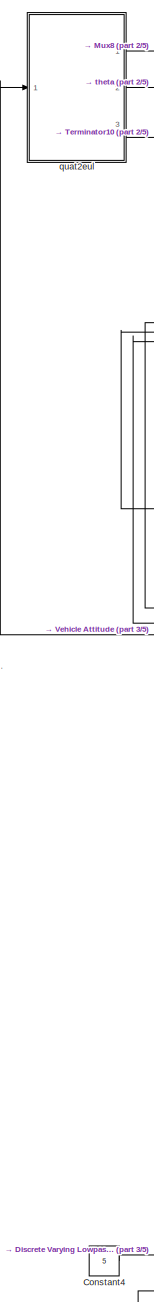
[diagram: root canvas - part 1/5, left side, full height]
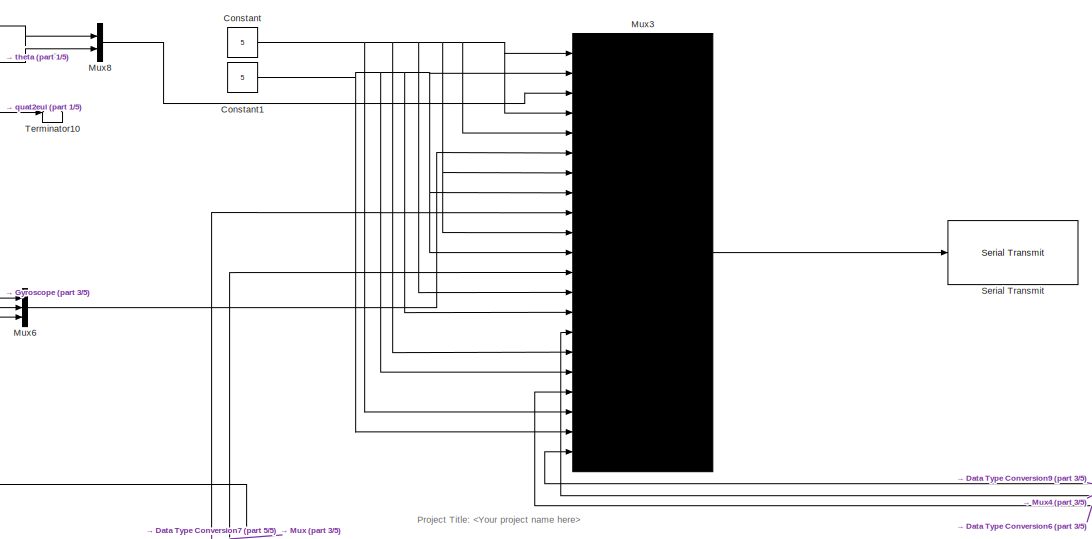
[diagram: root canvas - part 2/5, top center region]
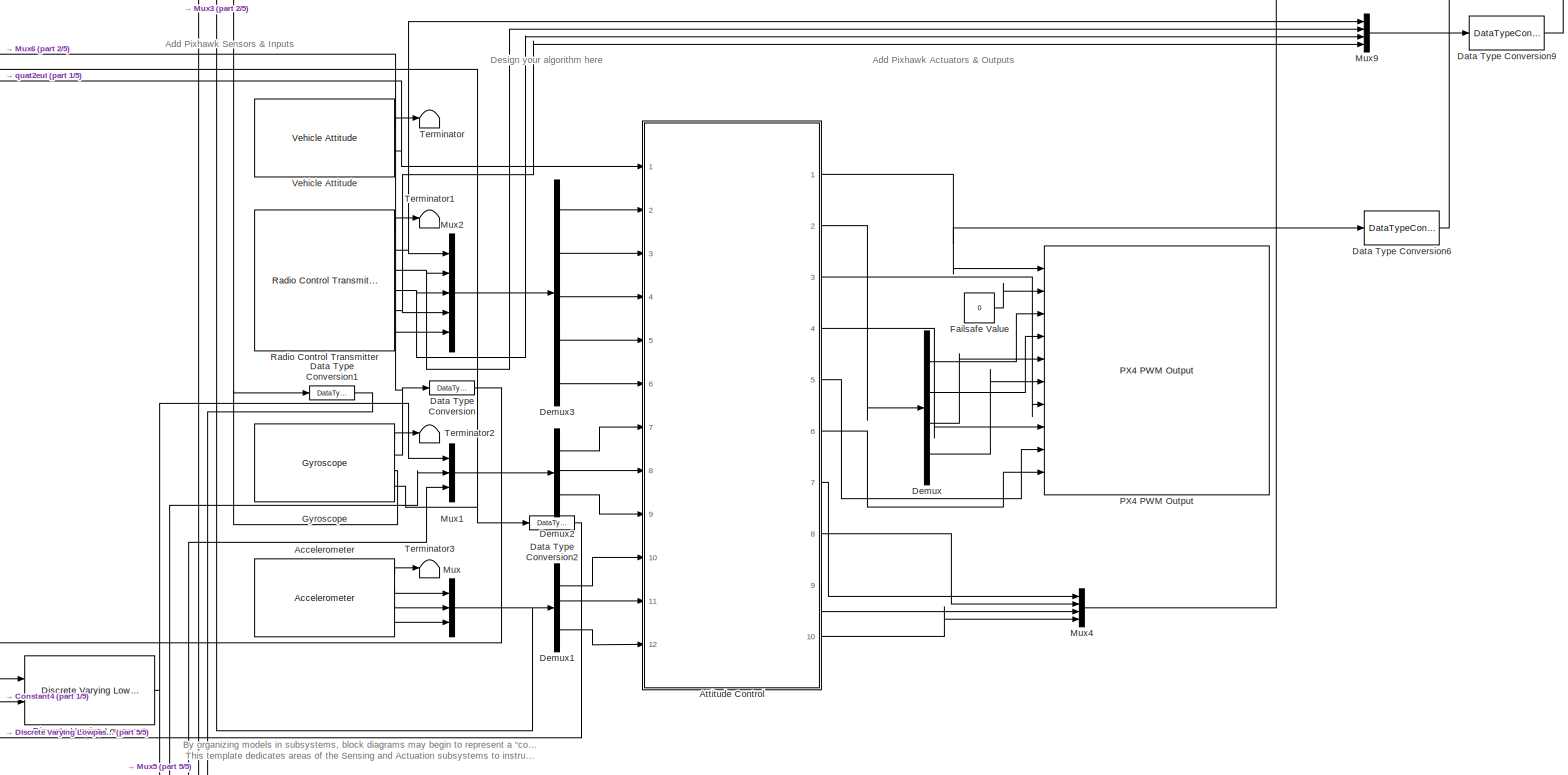
[diagram: root canvas - part 3/5, full width, middle band]
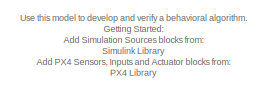
[diagram: root canvas - part 4/5, middle left region]
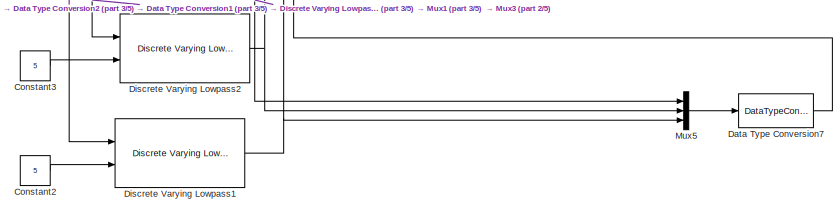
[diagram: root canvas - part 5/5, bottom center region]
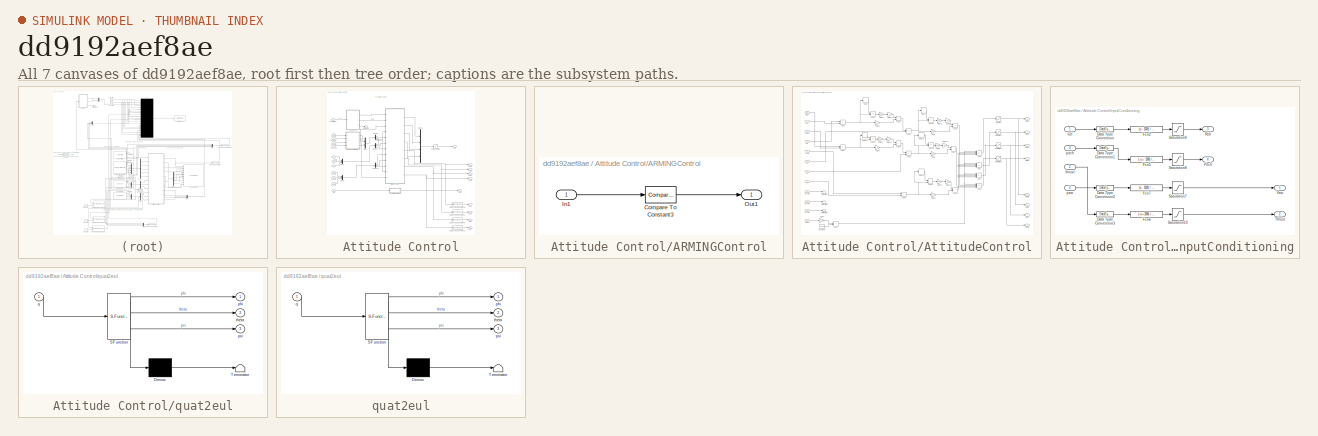
[diagram: thumbnail index - all 7 canvases of the model, root first then tree order]
MODEL slx_dd9192aef8ae
KIND model
CONFIG AbsTol = auto
CONFIG EnableMultiTasking = on
CONFIG FixedStep = auto
CONFIG MaxStep = auto
CONFIG MinStep = auto
CONFIG RelTol = 1e-3
CONFIG SampleTimeConstraint = Unconstrained
CONFIG SolverName = FixedStepAuto
CONFIG StartTime = 0.0
CONFIG StopTime = 5.0
BLOCK [Reference] Accelerometer  REF=px4Sensorslib/Accelerometer
  Ports = [0, 4]
  SourceBlock = px4Sensorslib/Accelerometer
  SourceProductBaseCode = PX4AUTOPILOTS
  SourceType = PX4 Accelerometer
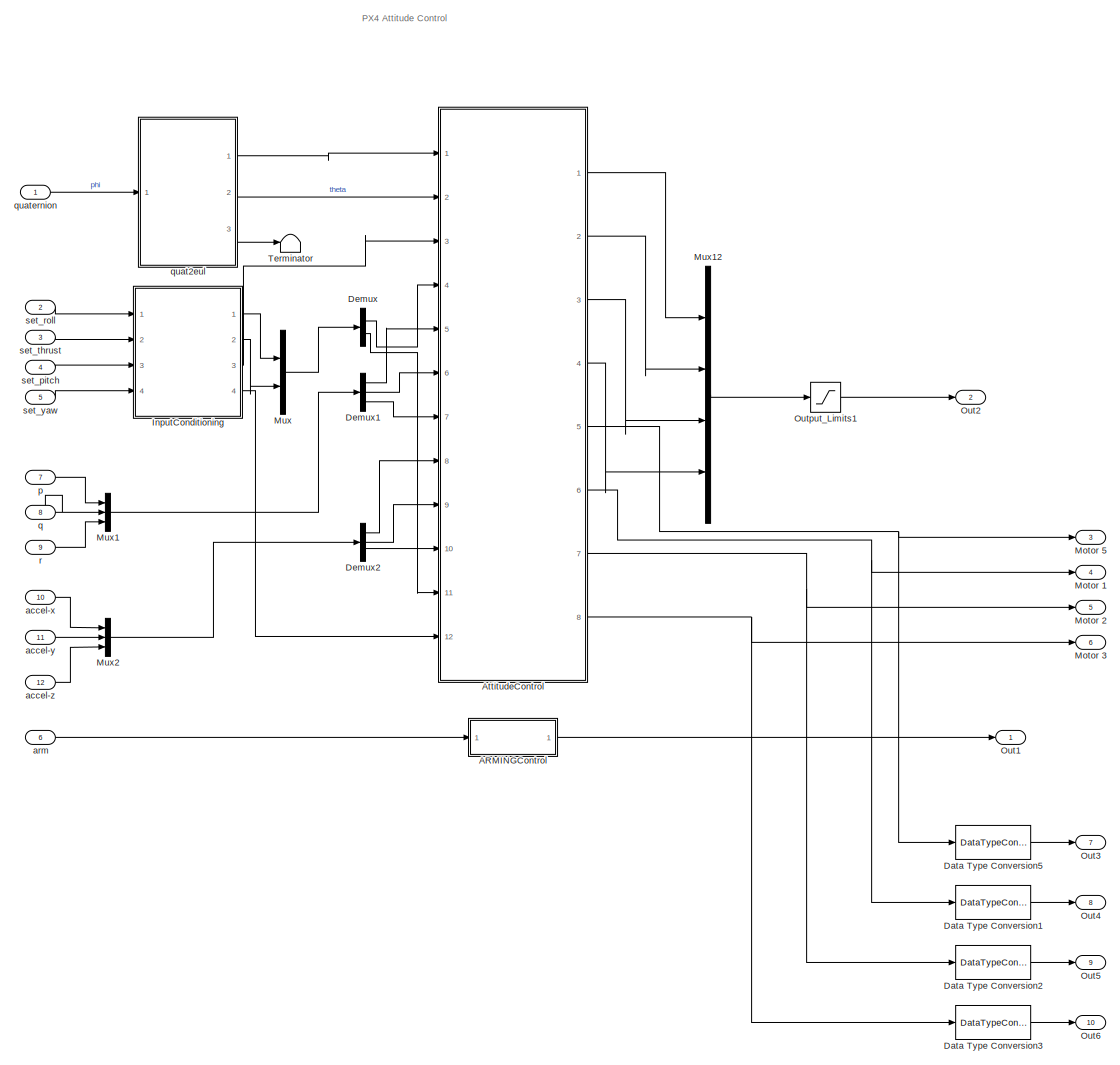
[diagram: Attitude Control - part 1/1, most of the canvas]
BLOCK [SubSystem] Attitude Control
  Ports = [12, 10]
  RequestExecContextInheritance = off
BLOCK [SubSystem] Attitude Control/ARMINGControl
  Ports = [1, 1]
  RequestExecContextInheritance = off
BLOCK [Reference] Attitude Control/ARMINGControl/Compare To Constant3  REF=simulink/Logic and Bit
Operations/Compare
To Constant
  Ports = [1, 1]
  SourceBlock = simulink/Logic and Bit\nOperations/Compare\nTo Constant
  SourceProductBaseCode = SL
  SourceType = Compare To Constant
BLOCK [Inport] Attitude Control/ARMINGControl/In1
BLOCK [Outport] Attitude Control/ARMINGControl/Out1
  VectorParamsAs1DForOutWhenUnconnected = off
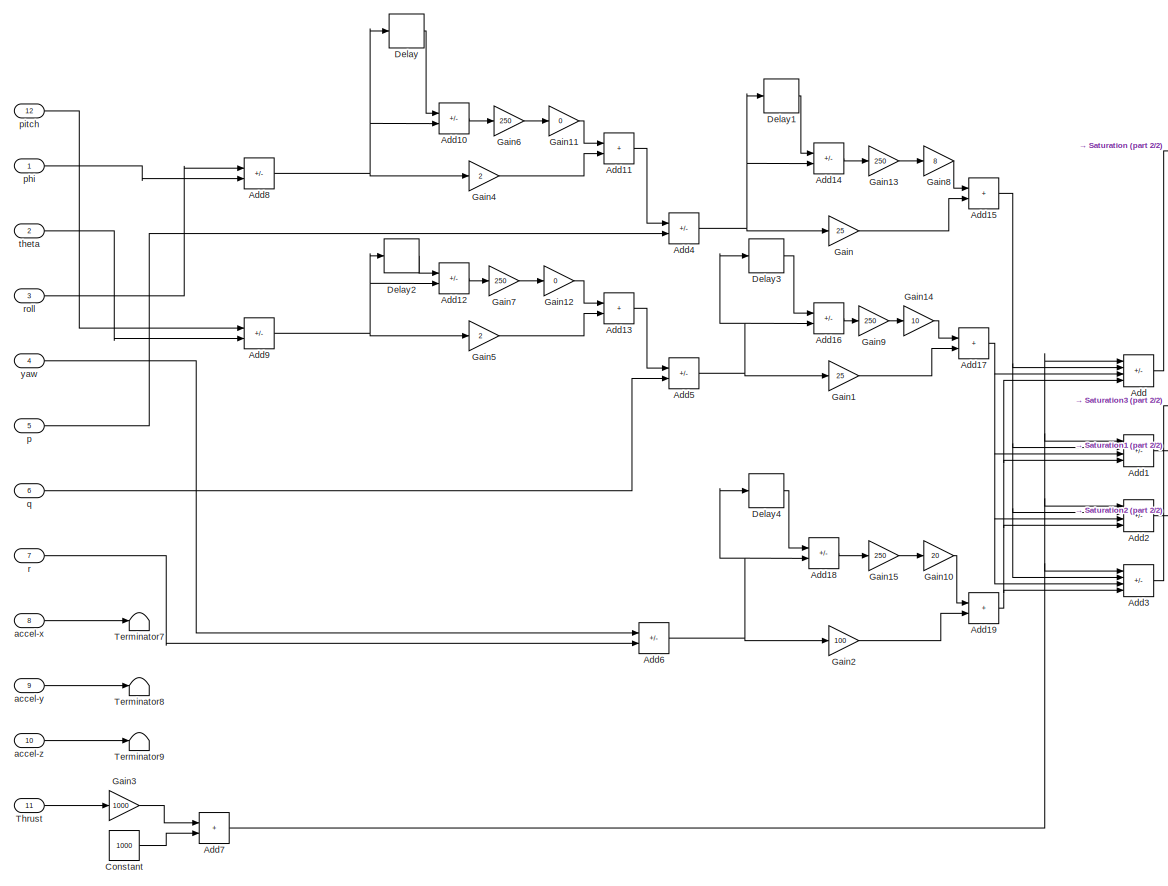
[diagram: Attitude Control/AttitudeControl - part 1/2, most of the canvas]
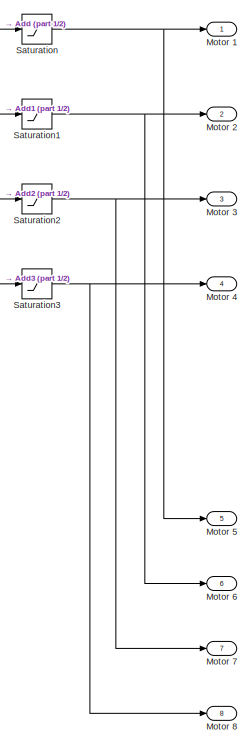
[diagram: Attitude Control/AttitudeControl - part 2/2, right side, full height]
BLOCK [SubSystem] Attitude Control/AttitudeControl
  Ports = [12, 8]
  RequestExecContextInheritance = off
BLOCK [Sum] Attitude Control/AttitudeControl/Add
  IconShape = rectangular
  Inputs = +-++
  Ports = [4, 1]
BLOCK [Sum] Attitude Control/AttitudeControl/Add1
  IconShape = rectangular
  Inputs = ++-+
  Ports = [4, 1]
BLOCK [Sum] Attitude Control/AttitudeControl/Add10
  IconShape = rectangular
  Inputs = -+
  Ports = [2, 1]
BLOCK [Sum] Attitude Control/AttitudeControl/Add11
  IconShape = rectangular
  Ports = [2, 1]
BLOCK [Sum] Attitude Control/AttitudeControl/Add12
  IconShape = rectangular
  Inputs = -+
  Ports = [2, 1]
BLOCK [Sum] Attitude Control/AttitudeControl/Add13
  IconShape = rectangular
  Ports = [2, 1]
BLOCK [Sum] Attitude Control/AttitudeControl/Add14
  IconShape = rectangular
  Inputs = -+
  Ports = [2, 1]
BLOCK [Sum] Attitude Control/AttitudeControl/Add15
  IconShape = rectangular
  Ports = [2, 1]
BLOCK [Sum] Attitude Control/AttitudeControl/Add16
  IconShape = rectangular
  Inputs = -+
  Ports = [2, 1]
BLOCK [Sum] Attitude Control/AttitudeControl/Add17
  IconShape = rectangular
  Ports = [2, 1]
BLOCK [Sum] Attitude Control/AttitudeControl/Add18
  IconShape = rectangular
  Inputs = -+
  Ports = [2, 1]
BLOCK [Sum] Attitude Control/AttitudeControl/Add19
  IconShape = rectangular
  Ports = [2, 1]
BLOCK [Sum] Attitude Control/AttitudeControl/Add2
  IconShape = rectangular
  Inputs = +++-
  Ports = [4, 1]
BLOCK [Sum] Attitude Control/AttitudeControl/Add3
  IconShape = rectangular
  Inputs = +---
  Ports = [4, 1]
BLOCK [Sum] Attitude Control/AttitudeControl/Add4
  IconShape = rectangular
  Inputs = +-
  Ports = [2, 1]
BLOCK [Sum] Attitude Control/AttitudeControl/Add5
  IconShape = rectangular
  Inputs = +-
  Ports = [2, 1]
BLOCK [Sum] Attitude Control/AttitudeControl/Add6
  IconShape = rectangular
  Inputs = +-
  Ports = [2, 1]
BLOCK [Sum] Attitude Control/AttitudeControl/Add7
  IconShape = rectangular
  Ports = [2, 1]
BLOCK [Sum] Attitude Control/AttitudeControl/Add8
  IconShape = rectangular
  Inputs = +-
  Ports = [2, 1]
BLOCK [Sum] Attitude Control/AttitudeControl/Add9
  IconShape = rectangular
  Inputs = +-
  Ports = [2, 1]
BLOCK [Constant] Attitude Control/AttitudeControl/Constant
  Value = 1000
BLOCK [Delay] Attitude Control/AttitudeControl/Delay
  DelayLength = 1
  InitialCondition = 0
  InputPortMap = u0
  Ports = [1, 1]
BLOCK [Delay] Attitude Control/AttitudeControl/Delay1
  DelayLength = 1
  InitialCondition = 0
  InputPortMap = u0
  Ports = [1, 1]
BLOCK [Delay] Attitude Control/AttitudeControl/Delay2
  DelayLength = 1
  InitialCondition = 0
  InputPortMap = u0
  Ports = [1, 1]
BLOCK [Delay] Attitude Control/AttitudeControl/Delay3
  DelayLength = 1
  InitialCondition = 0
  InputPortMap = u0
  Ports = [1, 1]
BLOCK [Delay] Attitude Control/AttitudeControl/Delay4
  DelayLength = 1
  InitialCondition = 0
  InputPortMap = u0
  Ports = [1, 1]
BLOCK [Gain] Attitude Control/AttitudeControl/Gain
  Gain = 25
BLOCK [Gain] Attitude Control/AttitudeControl/Gain1
  Gain = 25
BLOCK [Gain] Attitude Control/AttitudeControl/Gain10
  Gain = 20
BLOCK [Gain] Attitude Control/AttitudeControl/Gain11
  Gain = 0
BLOCK [Gain] Attitude Control/AttitudeControl/Gain12
  Gain = 0
BLOCK [Gain] Attitude Control/AttitudeControl/Gain13
  Gain = 250
BLOCK [Gain] Attitude Control/AttitudeControl/Gain14
  Gain = 10
BLOCK [Gain] Attitude Control/AttitudeControl/Gain15
  Gain = 250
BLOCK [Gain] Attitude Control/AttitudeControl/Gain2
  Gain = 100
BLOCK [Gain] Attitude Control/AttitudeControl/Gain3
  Gain = 1000
BLOCK [Gain] Attitude Control/AttitudeControl/Gain4
  Gain = 2
BLOCK [Gain] Attitude Control/AttitudeControl/Gain5
  Gain = 2
BLOCK [Gain] Attitude Control/AttitudeControl/Gain6
  Gain = 250
BLOCK [Gain] Attitude Control/AttitudeControl/Gain7
  Gain = 250
BLOCK [Gain] Attitude Control/AttitudeControl/Gain8
  Gain = 8
BLOCK [Gain] Attitude Control/AttitudeControl/Gain9
  Gain = 250
BLOCK [Outport] Attitude Control/AttitudeControl/Motor 1
  OutDataTypeStr = uint16
  VectorParamsAs1DForOutWhenUnconnected = off
BLOCK [Outport] Attitude Control/AttitudeControl/Motor 2
  OutDataTypeStr = uint16
  Port = 2
  VectorParamsAs1DForOutWhenUnconnected = off
BLOCK [Outport] Attitude Control/AttitudeControl/Motor 3
  OutDataTypeStr = uint16
  Port = 3
  VectorParamsAs1DForOutWhenUnconnected = off
BLOCK [Outport] Attitude Control/AttitudeControl/Motor 4
  OutDataTypeStr = uint16
  Port = 4
  VectorParamsAs1DForOutWhenUnconnected = off
BLOCK [Outport] Attitude Control/AttitudeControl/Motor 5
  OutDataTypeStr = uint16
  Port = 5
  SampleTime = 1/250
  VectorParamsAs1DForOutWhenUnconnected = off
BLOCK [Outport] Attitude Control/AttitudeControl/Motor 6
  OutDataTypeStr = uint16
  Port = 6
  VectorParamsAs1DForOutWhenUnconnected = off
BLOCK [Outport] Attitude Control/AttitudeControl/Motor 7
  OutDataTypeStr = uint16
  Port = 7
  VectorParamsAs1DForOutWhenUnconnected = off
BLOCK [Outport] Attitude Control/AttitudeControl/Motor 8
  OutDataTypeStr = uint16
  Port = 8
  VectorParamsAs1DForOutWhenUnconnected = off
BLOCK [Saturate] Attitude Control/AttitudeControl/Saturation
  LowerLimit = 800
  OutDataTypeStr = uint16
  UpperLimit = 2000
BLOCK [Saturate] Attitude Control/AttitudeControl/Saturation1
  LowerLimit = 800
  OutDataTypeStr = uint16
  UpperLimit = 2000
BLOCK [Saturate] Attitude Control/AttitudeControl/Saturation2
  LowerLimit = 800
  OutDataTypeStr = uint16
  UpperLimit = 2000
BLOCK [Saturate] Attitude Control/AttitudeControl/Saturation3
  LowerLimit = 800
  OutDataTypeStr = uint16
  UpperLimit = 2000
BLOCK [Terminator] Attitude Control/AttitudeControl/Terminator7
BLOCK [Terminator] Attitude Control/AttitudeControl/Terminator8
BLOCK [Terminator] Attitude Control/AttitudeControl/Terminator9
BLOCK [Inport] Attitude Control/AttitudeControl/Thrust
  Port = 11
BLOCK [Inport] Attitude Control/AttitudeControl/accel-x
  Port = 8
BLOCK [Inport] Attitude Control/AttitudeControl/accel-y
  Port = 9
BLOCK [Inport] Attitude Control/AttitudeControl/accel-z
  Port = 10
BLOCK [Inport] Attitude Control/AttitudeControl/p
  Port = 5
BLOCK [Inport] Attitude Control/AttitudeControl/phi
BLOCK [Inport] Attitude Control/AttitudeControl/pitch
  Port = 12
BLOCK [Inport] Attitude Control/AttitudeControl/q
  Port = 6
BLOCK [Inport] Attitude Control/AttitudeControl/r
  Port = 7
BLOCK [Inport] Attitude Control/AttitudeControl/roll
  Port = 3
BLOCK [Inport] Attitude Control/AttitudeControl/theta
  Port = 2
BLOCK [Inport] Attitude Control/AttitudeControl/yaw
  Port = 4
BLOCK [DataTypeConversion] Attitude Control/Data Type Conversion1
  RndMeth = Floor
  SaturateOnIntegerOverflow = off
BLOCK [DataTypeConversion] Attitude Control/Data Type Conversion2
  RndMeth = Floor
  SaturateOnIntegerOverflow = off
BLOCK [DataTypeConversion] Attitude Control/Data Type Conversion3
  RndMeth = Floor
  SaturateOnIntegerOverflow = off
BLOCK [DataTypeConversion] Attitude Control/Data Type Conversion5
  RndMeth = Floor
  SaturateOnIntegerOverflow = off
BLOCK [Demux] Attitude Control/Demux
  Outputs = 2
  Ports = [1, 2]
BLOCK [Demux] Attitude Control/Demux1
  Outputs = 3
  Ports = [1, 3]
BLOCK [Demux] Attitude Control/Demux2
  Outputs = 3
  Ports = [1, 3]
BLOCK [SubSystem] Attitude Control/InputConditioning
  Ports = [4, 4]
  RequestExecContextInheritance = off
BLOCK [DataTypeConversion] Attitude Control/InputConditioning/Data Type Conversion
  OutDataTypeStr = double
  RndMeth = Floor
  SaturateOnIntegerOverflow = off
BLOCK [DataTypeConversion] Attitude Control/InputConditioning/Data Type Conversion1
  OutDataTypeStr = double
  RndMeth = Floor
  SaturateOnIntegerOverflow = off
BLOCK [DataTypeConversion] Attitude Control/InputConditioning/Data Type Conversion2
  OutDataTypeStr = double
  RndMeth = Floor
  SaturateOnIntegerOverflow = off
BLOCK [DataTypeConversion] Attitude Control/InputConditioning/Data Type Conversion3
  OutDataTypeStr = double
  RndMeth = Floor
  SaturateOnIntegerOverflow = off
BLOCK [Fcn] Attitude Control/InputConditioning/Fcn2
  Expr = (u - 1500) / 500
BLOCK [Fcn] Attitude Control/InputConditioning/Fcn5
  Expr = (-u + 1500) / 500
BLOCK [Fcn] Attitude Control/InputConditioning/Fcn6
  Expr = (-u +2000) / 1000
BLOCK [Fcn] Attitude Control/InputConditioning/Fcn7
  Expr = (u - 1500) / 500
BLOCK [Outport] Attitude Control/InputConditioning/Pitch
  Port = 4
  VectorParamsAs1DForOutWhenUnconnected = off
BLOCK [Outport] Attitude Control/InputConditioning/Roll
  Port = 3
  VectorParamsAs1DForOutWhenUnconnected = off
BLOCK [Saturate] Attitude Control/InputConditioning/Saturation10
  LowerLimit = 0
  UpperLimit = 1
BLOCK [Saturate] Attitude Control/InputConditioning/Saturation7
  LowerLimit = -1
  UpperLimit = 1
BLOCK [Saturate] Attitude Control/InputConditioning/Saturation8
  LowerLimit = -1
  UpperLimit = 1
BLOCK [Saturate] Attitude Control/InputConditioning/Saturation9
  LowerLimit = -1
  UpperLimit = 1
BLOCK [Outport] Attitude Control/InputConditioning/Thrust
  Port = 2
  VectorParamsAs1DForOutWhenUnconnected = off
BLOCK [Outport] Attitude Control/InputConditioning/Yaw
  VectorParamsAs1DForOutWhenUnconnected = off
BLOCK [Inport] Attitude Control/InputConditioning/pitch
  Port = 3
BLOCK [Inport] Attitude Control/InputConditioning/roll
BLOCK [Inport] Attitude Control/InputConditioning/thrust
  Port = 2
BLOCK [Inport] Attitude Control/InputConditioning/yaw
  Port = 4
BLOCK [Outport] Attitude Control/Motor 1
  OutDataTypeStr = uint16
  Port = 4
  VectorParamsAs1DForOutWhenUnconnected = off
BLOCK [Outport] Attitude Control/Motor 2
  OutDataTypeStr = uint16
  Port = 5
  VectorParamsAs1DForOutWhenUnconnected = off
BLOCK [Outport] Attitude Control/Motor 3
  OutDataTypeStr = uint16
  Port = 6
  VectorParamsAs1DForOutWhenUnconnected = off
BLOCK [Outport] Attitude Control/Motor 5
  OutDataTypeStr = uint16
  Port = 3
  VectorParamsAs1DForOutWhenUnconnected = off
BLOCK [Mux] Attitude Control/Mux
  DisplayOption = bar
  Inputs = 2
  Ports = [2, 1]
BLOCK [Mux] Attitude Control/Mux1
  DisplayOption = bar
  Inputs = 3
  Ports = [3, 1]
BLOCK [Mux] Attitude Control/Mux12
  DisplayOption = bar
  Ports = [4, 1]
BLOCK [Mux] Attitude Control/Mux2
  DisplayOption = bar
  Inputs = 3
  Ports = [3, 1]
BLOCK [Outport] Attitude Control/Out1
  VectorParamsAs1DForOutWhenUnconnected = off
BLOCK [Outport] Attitude Control/Out2
  Port = 2
  VectorParamsAs1DForOutWhenUnconnected = off
BLOCK [Outport] Attitude Control/Out3
  Port = 7
BLOCK [Outport] Attitude Control/Out4
  Port = 8
BLOCK [Outport] Attitude Control/Out5
  Port = 9
BLOCK [Outport] Attitude Control/Out6
  Port = 10
BLOCK [Saturate] Attitude Control/Output_Limits1
  LowerLimit = 1000
  UpperLimit = 2000
BLOCK [Terminator] Attitude Control/Terminator
BLOCK [Inport] Attitude Control/accel-x
  Port = 10
BLOCK [Inport] Attitude Control/accel-y
  Port = 11
BLOCK [Inport] Attitude Control/accel-z
  Port = 12
BLOCK [Inport] Attitude Control/arm
  OutDataTypeStr = uint16
  Port = 6
BLOCK [Inport] Attitude Control/p
  Port = 7
BLOCK [Inport] Attitude Control/q
  Port = 8
BLOCK [SubSystem] Attitude Control/quat2eul
  ErrorFcn = Stateflow.Translate.translate
  PermitHierarchicalResolution = ExplicitOnly
  Ports = [1, 3]
  RequestExecContextInheritance = off
  SFBlockType = MATLAB Function
  TreatAsAtomicUnit = on
BLOCK [Demux] Attitude Control/quat2eul/ Demux 
  Outputs = 1
  Ports = [1, 1]
BLOCK [S-Function] Attitude Control/quat2eul/ SFunction 
  EnableBusSupport = on
  FunctionName = sf_sfun
  PortCounts = [1 4]
  Ports = [1, 4]
  SFcnIsStateOwnerBlock = off
  SFunctionDeploymentMode = off
  Tag = Stateflow S-Function 10
BLOCK [Terminator] Attitude Control/quat2eul/ Terminator 
BLOCK [Outport] Attitude Control/quat2eul/phi
  VectorParamsAs1DForOutWhenUnconnected = off
BLOCK [Outport] Attitude Control/quat2eul/psi
  Port = 3
  VectorParamsAs1DForOutWhenUnconnected = off
BLOCK [Inport] Attitude Control/quat2eul/q
BLOCK [Outport] Attitude Control/quat2eul/theta
  Port = 2
  VectorParamsAs1DForOutWhenUnconnected = off
BLOCK [Inport] Attitude Control/quaternion
BLOCK [Inport] Attitude Control/r
  Port = 9
BLOCK [Inport] Attitude Control/set_pitch
  OutDataTypeStr = uint16
  Port = 4
BLOCK [Inport] Attitude Control/set_roll
  OutDataTypeStr = uint16
  Port = 2
BLOCK [Inport] Attitude Control/set_thrust
  OutDataTypeStr = uint16
  Port = 3
BLOCK [Inport] Attitude Control/set_yaw
  OutDataTypeStr = uint16
  Port = 5
BLOCK [Constant] Constant
  OutDataTypeStr = single
  Value = 5
BLOCK [Constant] Constant1
  OutDataTypeStr = single
  Value = 5
BLOCK [Constant] Constant2
  Value = 5
BLOCK [Constant] Constant3
  Value = 5
BLOCK [Constant] Constant4
  Value = 5
BLOCK [DataTypeConversion] Data Type Conversion
  OutDataTypeStr = double
  RndMeth = Floor
  SaturateOnIntegerOverflow = off
BLOCK [DataTypeConversion] Data Type Conversion1
  OutDataTypeStr = double
  RndMeth = Floor
  SaturateOnIntegerOverflow = off
BLOCK [DataTypeConversion] Data Type Conversion2
  OutDataTypeStr = double
  RndMeth = Floor
  SaturateOnIntegerOverflow = off
BLOCK [DataTypeConversion] Data Type Conversion6
  RndMeth = Floor
  SaturateOnIntegerOverflow = off
BLOCK [DataTypeConversion] Data Type Conversion7
  RndMeth = Floor
  SaturateOnIntegerOverflow = off
BLOCK [DataTypeConversion] Data Type Conversion9
  RndMeth = Floor
  SaturateOnIntegerOverflow = off
BLOCK [Demux] Demux
  Ports = [1, 4]
BLOCK [Demux] Demux1
  Outputs = 3
  Ports = [1, 3]
BLOCK [Demux] Demux2
  Outputs = 3
  Ports = [1, 3]
BLOCK [Demux] Demux3
  Outputs = 5
  Ports = [1, 5]
BLOCK [Reference] Discrete Varying Lowpass1  REF=cstblocks/Linear Parameter Varying/Discrete Varying Lowpass
  Ports = [2, 1]
  SourceBlock = cstblocks/Linear Parameter Varying/Discrete Varying Lowpass
  SourceProductBaseCode = CT
  SourceType = Discrete Varying Lowpass
BLOCK [Reference] Discrete Varying Lowpass2  REF=cstblocks/Linear Parameter Varying/Discrete Varying Lowpass
  Ports = [2, 1]
  SourceBlock = cstblocks/Linear Parameter Varying/Discrete Varying Lowpass
  SourceProductBaseCode = CT
  SourceType = Discrete Varying Lowpass
BLOCK [Reference] Discrete Varying Lowpass3  REF=cstblocks/Linear Parameter Varying/Discrete Varying Lowpass
  Ports = [2, 1]
  SourceBlock = cstblocks/Linear Parameter Varying/Discrete Varying Lowpass
  SourceProductBaseCode = CT
  SourceType = Discrete Varying Lowpass
BLOCK [Constant] Failsafe Value
  OutDataTypeStr = boolean
  SampleTime = -1
  Value = 0
BLOCK [Reference] Gyroscope  REF=px4Sensorslib/Gyroscope
  Ports = [0, 4]
  SourceBlock = px4Sensorslib/Gyroscope
  SourceProductBaseCode = PX4AUTOPILOTS
  SourceType = PX4 Gyroscope
BLOCK [Mux] Mux
  DisplayOption = bar
  Inputs = 3
  Ports = [3, 1]
BLOCK [Mux] Mux1
  DisplayOption = bar
  Inputs = 3
  Ports = [3, 1]
BLOCK [Mux] Mux2
  DisplayOption = bar
  Inputs = 5
  Ports = [5, 1]
BLOCK [Mux] Mux3
  DisplayOption = bar
  Inputs = 21
  Ports = [21, 1]
BLOCK [Mux] Mux4
  DisplayOption = bar
  Ports = [4, 1]
BLOCK [Mux] Mux5
  DisplayOption = bar
  Inputs = 3
  Ports = [3, 1]
BLOCK [Mux] Mux6
  DisplayOption = bar
  Inputs = 3
  Ports = [3, 1]
BLOCK [Mux] Mux8
  DisplayOption = bar
  Inputs = 2
  Ports = [2, 1]
BLOCK [Mux] Mux9
  DisplayOption = bar
  Ports = [4, 1]
BLOCK [Reference] PX4 PWM Output  REF=px4lib/PX4 PWM Output
  Ports = [10]
  SourceBlock = px4lib/PX4 PWM Output
  SourceProductBaseCode = PX4AUTOPILOTS
  SourceType = PX4 PWM Output
BLOCK [Reference] Radio Control Transmitter  REF=px4Sensorslib/Radio Control Transmitter
  Ports = [0, 6]
  SourceBlock = px4Sensorslib/Radio Control Transmitter
  SourceProductBaseCode = PX4AUTOPILOTS
  SourceType = PX4 Radio Control Transmitter
BLOCK [Reference] Serial Transmit  REF=px4lib/Serial Transmit
  Ports = [1]
  SourceBlock = px4lib/Serial Transmit
  SourceProductBaseCode = PX4AUTOPILOTS
  SourceType = PX4 Serial Transmit
BLOCK [Terminator] Terminator
BLOCK [Terminator] Terminator1
BLOCK [Terminator] Terminator10
BLOCK [Terminator] Terminator2
BLOCK [Terminator] Terminator3
BLOCK [Reference] Vehicle Attitude  REF=px4Sensorslib/Vehicle Attitude
  Ports = [0, 2]
  SourceBlock = px4Sensorslib/Vehicle Attitude
  SourceProductBaseCode = PX4AUTOPILOTS
  SourceType = PX4 Vehicle Attitude
BLOCK [SubSystem] quat2eul
  ErrorFcn = Stateflow.Translate.translate
  PermitHierarchicalResolution = ExplicitOnly
  Ports = [1, 3]
  RequestExecContextInheritance = off
  SFBlockType = MATLAB Function
  TreatAsAtomicUnit = on
BLOCK [Demux] quat2eul/ Demux 
  Outputs = 1
  Ports = [1, 1]
BLOCK [S-Function] quat2eul/ SFunction 
  EnableBusSupport = on
  FunctionName = sf_sfun
  PortCounts = [1 4]
  Ports = [1, 4]
  SFcnIsStateOwnerBlock = off
  SFunctionDeploymentMode = off
  Tag = Stateflow S-Function 1
BLOCK [Terminator] quat2eul/ Terminator 
BLOCK [Outport] quat2eul/phi
  VectorParamsAs1DForOutWhenUnconnected = off
BLOCK [Outport] quat2eul/psi
  Port = 3
  VectorParamsAs1DForOutWhenUnconnected = off
BLOCK [Inport] quat2eul/q
BLOCK [Outport] quat2eul/theta
  Port = 2
  VectorParamsAs1DForOutWhenUnconnected = off
ANNOTATION (root): By organizing models in subsystems, block diagrams may begin to represent a “control architecture”. This template dedicates areas of the Sensing and Actuation subsystems to instrumentation functionality, such as sensor calibration, input signal filtering, and output signal conditioning.
ANNOTATION (root): Use this model to develop and verify a behavioral algorithm. Getting Started: Add Simulation Sources blocks from: Simulink Library Add PX4 Sensors, Inputs and Actuator blocks from: PX4 Library Configure Pixhawk Hardware: Open Model Configuration Parameters dialog Under the Hardware Implementation option, select the desired Pixhawk hardware from the Hardware board parameter list. This model is pre-...<+65ch>
ANNOTATION (root): Add Pixhawk Actuators & Outputs
ANNOTATION (root): Add Pixhawk Sensors & Inputs
ANNOTATION (root): Design your algorithm here
ANNOTATION (root): Project Title:
ANNOTATION Attitude Control: PX4 Attitude Control
LINE Accelerometer:1 -> Terminator3:1
LINE Accelerometer:2 -> Mux:1
LINE Accelerometer:3 -> Mux:2
LINE Accelerometer:4 -> Mux:3
LINE Attitude Control/ARMINGControl/Compare To Constant3:1 -> Attitude Control/ARMINGControl/Out1:1
LINE Attitude Control/ARMINGControl/In1:1 -> Attitude Control/ARMINGControl/Compare To Constant3:1
LINE Attitude Control/ARMINGControl:1 -> Attitude Control/Out1:1
LINE Attitude Control/AttitudeControl/Add10:1 -> Attitude Control/AttitudeControl/Gain6:1
LINE Attitude Control/AttitudeControl/Add11:1 -> Attitude Control/AttitudeControl/Add4:1
LINE Attitude Control/AttitudeControl/Add12:1 -> Attitude Control/AttitudeControl/Gain7:1
LINE Attitude Control/AttitudeControl/Add13:1 -> Attitude Control/AttitudeControl/Add5:1
LINE Attitude Control/AttitudeControl/Add14:1 -> Attitude Control/AttitudeControl/Gain13:1
NET Attitude Control/AttitudeControl/Add15:1 -> Attitude Control/AttitudeControl/Add1:2, Attitude Control/AttitudeControl/Add2:2, Attitude Control/AttitudeControl/Add3:2, Attitude Control/AttitudeControl/Add:2
LINE Attitude Control/AttitudeControl/Add16:1 -> Attitude Control/AttitudeControl/Gain9:1
NET Attitude Control/AttitudeControl/Add17:1 -> Attitude Control/AttitudeControl/Add1:3, Attitude Control/AttitudeControl/Add2:3, Attitude Control/AttitudeControl/Add3:3, Attitude Control/AttitudeControl/Add:3
LINE Attitude Control/AttitudeControl/Add18:1 -> Attitude Control/AttitudeControl/Gain15:1
NET Attitude Control/AttitudeControl/Add19:1 -> Attitude Control/AttitudeControl/Add1:4, Attitude Control/AttitudeControl/Add2:4, Attitude Control/AttitudeControl/Add3:4, Attitude Control/AttitudeControl/Add:4
LINE Attitude Control/AttitudeControl/Add1:1 -> Attitude Control/AttitudeControl/Saturation1:1
LINE Attitude Control/AttitudeControl/Add2:1 -> Attitude Control/AttitudeControl/Saturation2:1
LINE Attitude Control/AttitudeControl/Add3:1 -> Attitude Control/AttitudeControl/Saturation3:1
NET Attitude Control/AttitudeControl/Add4:1 -> Attitude Control/AttitudeControl/Add14:2, Attitude Control/AttitudeControl/Delay1:1, Attitude Control/AttitudeControl/Gain:1
NET Attitude Control/AttitudeControl/Add5:1 -> Attitude Control/AttitudeControl/Add16:2, Attitude Control/AttitudeControl/Delay3:1, Attitude Control/AttitudeControl/Gain1:1
NET Attitude Control/AttitudeControl/Add6:1 -> Attitude Control/AttitudeControl/Add18:2, Attitude Control/AttitudeControl/Delay4:1, Attitude Control/AttitudeControl/Gain2:1
NET Attitude Control/AttitudeControl/Add7:1 -> Attitude Control/AttitudeControl/Add1:1, Attitude Control/AttitudeControl/Add2:1, Attitude Control/AttitudeControl/Add3:1, Attitude Control/AttitudeControl/Add:1
NET Attitude Control/AttitudeControl/Add8:1 -> Attitude Control/AttitudeControl/Add10:2, Attitude Control/AttitudeControl/Delay:1, Attitude Control/AttitudeControl/Gain4:1
NET Attitude Control/AttitudeControl/Add9:1 -> Attitude Control/AttitudeControl/Add12:2, Attitude Control/AttitudeControl/Delay2:1, Attitude Control/AttitudeControl/Gain5:1
LINE Attitude Control/AttitudeControl/Add:1 -> Attitude Control/AttitudeControl/Saturation:1
LINE Attitude Control/AttitudeControl/Constant:1 -> Attitude Control/AttitudeControl/Add7:2
LINE Attitude Control/AttitudeControl/Delay1:1 -> Attitude Control/AttitudeControl/Add14:1
LINE Attitude Control/AttitudeControl/Delay2:1 -> Attitude Control/AttitudeControl/Add12:1
LINE Attitude Control/AttitudeControl/Delay3:1 -> Attitude Control/AttitudeControl/Add16:1
LINE Attitude Control/AttitudeControl/Delay4:1 -> Attitude Control/AttitudeControl/Add18:1
LINE Attitude Control/AttitudeControl/Delay:1 -> Attitude Control/AttitudeControl/Add10:1
LINE Attitude Control/AttitudeControl/Gain10:1 -> Attitude Control/AttitudeControl/Add19:1
LINE Attitude Control/AttitudeControl/Gain11:1 -> Attitude Control/AttitudeControl/Add11:1
LINE Attitude Control/AttitudeControl/Gain12:1 -> Attitude Control/AttitudeControl/Add13:1
LINE Attitude Control/AttitudeControl/Gain13:1 -> Attitude Control/AttitudeControl/Gain8:1
LINE Attitude Control/AttitudeControl/Gain14:1 -> Attitude Control/AttitudeControl/Add17:1
LINE Attitude Control/AttitudeControl/Gain15:1 -> Attitude Control/AttitudeControl/Gain10:1
LINE Attitude Control/AttitudeControl/Gain1:1 -> Attitude Control/AttitudeControl/Add17:2
LINE Attitude Control/AttitudeControl/Gain2:1 -> Attitude Control/AttitudeControl/Add19:2
LINE Attitude Control/AttitudeControl/Gain3:1 -> Attitude Control/AttitudeControl/Add7:1
LINE Attitude Control/AttitudeControl/Gain4:1 -> Attitude Control/AttitudeControl/Add11:2
LINE Attitude Control/AttitudeControl/Gain5:1 -> Attitude Control/AttitudeControl/Add13:2
LINE Attitude Control/AttitudeControl/Gain6:1 -> Attitude Control/AttitudeControl/Gain11:1
LINE Attitude Control/AttitudeControl/Gain7:1 -> Attitude Control/AttitudeControl/Gain12:1
LINE Attitude Control/AttitudeControl/Gain8:1 -> Attitude Control/AttitudeControl/Add15:1
LINE Attitude Control/AttitudeControl/Gain9:1 -> Attitude Control/AttitudeControl/Gain14:1
LINE Attitude Control/AttitudeControl/Gain:1 -> Attitude Control/AttitudeControl/Add15:2
NET Attitude Control/AttitudeControl/Saturation1:1 -> Attitude Control/AttitudeControl/Motor 2:1, Attitude Control/AttitudeControl/Motor 6:1
NET Attitude Control/AttitudeControl/Saturation2:1 -> Attitude Control/AttitudeControl/Motor 3:1, Attitude Control/AttitudeControl/Motor 7:1
NET Attitude Control/AttitudeControl/Saturation3:1 -> Attitude Control/AttitudeControl/Motor 4:1, Attitude Control/AttitudeControl/Motor 8:1
NET Attitude Control/AttitudeControl/Saturation:1 -> Attitude Control/AttitudeControl/Motor 1:1, Attitude Control/AttitudeControl/Motor 5:1
LINE Attitude Control/AttitudeControl/Thrust:1 -> Attitude Control/AttitudeControl/Gain3:1
LINE Attitude Control/AttitudeControl/accel-x:1 -> Attitude Control/AttitudeControl/Terminator7:1
LINE Attitude Control/AttitudeControl/accel-y:1 -> Attitude Control/AttitudeControl/Terminator8:1
LINE Attitude Control/AttitudeControl/accel-z:1 -> Attitude Control/AttitudeControl/Terminator9:1
LINE Attitude Control/AttitudeControl/p:1 -> Attitude Control/AttitudeControl/Add4:2
LINE Attitude Control/AttitudeControl/phi:1 -> Attitude Control/AttitudeControl/Add8:2
LINE Attitude Control/AttitudeControl/pitch:1 -> Attitude Control/AttitudeControl/Add9:1
LINE Attitude Control/AttitudeControl/q:1 -> Attitude Control/AttitudeControl/Add5:2
LINE Attitude Control/AttitudeControl/r:1 -> Attitude Control/AttitudeControl/Add6:2
LINE Attitude Control/AttitudeControl/roll:1 -> Attitude Control/AttitudeControl/Add8:1
LINE Attitude Control/AttitudeControl/theta:1 -> Attitude Control/AttitudeControl/Add9:2
LINE Attitude Control/AttitudeControl/yaw:1 -> Attitude Control/AttitudeControl/Add6:1
LINE Attitude Control/AttitudeControl:1 -> Attitude Control/Mux12:1
LINE Attitude Control/AttitudeControl:2 -> Attitude Control/Mux12:2
LINE Attitude Control/AttitudeControl:3 -> Attitude Control/Mux12:3
LINE Attitude Control/AttitudeControl:4 -> Attitude Control/Mux12:4
NET Attitude Control/AttitudeControl:5 -> Attitude Control/Data Type Conversion5:1, Attitude Control/Motor 5:1
NET Attitude Control/AttitudeControl:6 -> Attitude Control/Data Type Conversion1:1, Attitude Control/Motor 1:1
NET Attitude Control/AttitudeControl:7 -> Attitude Control/Data Type Conversion2:1, Attitude Control/Motor 2:1
NET Attitude Control/AttitudeControl:8 -> Attitude Control/Data Type Conversion3:1, Attitude Control/Motor 3:1
LINE Attitude Control/Data Type Conversion1:1 -> Attitude Control/Out4:1
LINE Attitude Control/Data Type Conversion2:1 -> Attitude Control/Out5:1
LINE Attitude Control/Data Type Conversion3:1 -> Attitude Control/Out6:1
LINE Attitude Control/Data Type Conversion5:1 -> Attitude Control/Out3:1
LINE Attitude Control/Demux1:1 -> Attitude Control/AttitudeControl:5
LINE Attitude Control/Demux1:2 -> Attitude Control/AttitudeControl:6
LINE Attitude Control/Demux1:3 -> Attitude Control/AttitudeControl:7
LINE Attitude Control/Demux2:1 -> Attitude Control/AttitudeControl:8
LINE Attitude Control/Demux2:2 -> Attitude Control/AttitudeControl:9
LINE Attitude Control/Demux2:3 -> Attitude Control/AttitudeControl:10
LINE Attitude Control/Demux:1 -> Attitude Control/AttitudeControl:4
LINE Attitude Control/Demux:2 -> Attitude Control/AttitudeControl:11
LINE Attitude Control/InputConditioning/Data Type Conversion1:1 -> Attitude Control/InputConditioning/Fcn5:1
LINE Attitude Control/InputConditioning/Data Type Conversion2:1 -> Attitude Control/InputConditioning/Fcn7:1
LINE Attitude Control/InputConditioning/Data Type Conversion3:1 -> Attitude Control/InputConditioning/Fcn6:1
LINE Attitude Control/InputConditioning/Data Type Conversion:1 -> Attitude Control/InputConditioning/Fcn2:1
LINE Attitude Control/InputConditioning/Fcn2:1 -> Attitude Control/InputConditioning/Saturation9:1
LINE Attitude Control/InputConditioning/Fcn5:1 -> Attitude Control/InputConditioning/Saturation8:1
LINE Attitude Control/InputConditioning/Fcn6:1 -> Attitude Control/InputConditioning/Saturation10:1
LINE Attitude Control/InputConditioning/Fcn7:1 -> Attitude Control/InputConditioning/Saturation7:1
LINE Attitude Control/InputConditioning/Saturation10:1 -> Attitude Control/InputConditioning/Thrust:1
LINE Attitude Control/InputConditioning/Saturation7:1 -> Attitude Control/InputConditioning/Yaw:1
LINE Attitude Control/InputConditioning/Saturation8:1 -> Attitude Control/InputConditioning/Pitch:1
LINE Attitude Control/InputConditioning/Saturation9:1 -> Attitude Control/InputConditioning/Roll:1
LINE Attitude Control/InputConditioning/pitch:1 -> Attitude Control/InputConditioning/Data Type Conversion1:1
LINE Attitude Control/InputConditioning/roll:1 -> Attitude Control/InputConditioning/Data Type Conversion:1
LINE Attitude Control/InputConditioning/thrust:1 -> Attitude Control/InputConditioning/Data Type Conversion3:1
LINE Attitude Control/InputConditioning/yaw:1 -> Attitude Control/InputConditioning/Data Type Conversion2:1
LINE Attitude Control/InputConditioning:1 -> Attitude Control/Mux:1
LINE Attitude Control/InputConditioning:2 -> Attitude Control/Mux:2
LINE Attitude Control/InputConditioning:3 -> Attitude Control/AttitudeControl:3
LINE Attitude Control/InputConditioning:4 -> Attitude Control/AttitudeControl:12
LINE Attitude Control/Mux12:1 -> Attitude Control/Output_Limits1:1
LINE Attitude Control/Mux1:1 -> Attitude Control/Demux1:1
LINE Attitude Control/Mux2:1 -> Attitude Control/Demux2:1
LINE Attitude Control/Mux:1 -> Attitude Control/Demux:1
LINE Attitude Control/Output_Limits1:1 -> Attitude Control/Out2:1
LINE Attitude Control/accel-x:1 -> Attitude Control/Mux2:1
LINE Attitude Control/accel-y:1 -> Attitude Control/Mux2:2
LINE Attitude Control/accel-z:1 -> Attitude Control/Mux2:3
LINE Attitude Control/arm:1 -> Attitude Control/ARMINGControl:1
LINE Attitude Control/p:1 -> Attitude Control/Mux1:1
LINE Attitude Control/q:1 -> Attitude Control/Mux1:2
LINE Attitude Control/quat2eul:1 -> Attitude Control/AttitudeControl:1
LINE Attitude Control/quat2eul:2 -> Attitude Control/AttitudeControl:2
LINE Attitude Control/quat2eul:3 -> Attitude Control/Terminator:1
LINE Attitude Control/quaternion:1 -> Attitude Control/quat2eul:1
LINE Attitude Control/r:1 -> Attitude Control/Mux1:3
LINE Attitude Control/set_pitch:1 -> Attitude Control/InputConditioning:3
LINE Attitude Control/set_roll:1 -> Attitude Control/InputConditioning:1
LINE Attitude Control/set_thrust:1 -> Attitude Control/InputConditioning:2
LINE Attitude Control/set_yaw:1 -> Attitude Control/InputConditioning:4
NET Attitude Control:1 -> Data Type Conversion6:1, PX4 PWM Output:1
LINE Attitude Control:10 -> Mux4:4
LINE Attitude Control:2 -> Demux:1
LINE Attitude Control:3 -> PX4 PWM Output:7
LINE Attitude Control:4 -> PX4 PWM Output:8
LINE Attitude Control:5 -> PX4 PWM Output:9
LINE Attitude Control:6 -> PX4 PWM Output:10
LINE Attitude Control:7 -> Mux4:1
LINE Attitude Control:8 -> Mux4:2
LINE Attitude Control:9 -> Mux4:3
NET Constant1:1 -> Mux3:11, Mux3:14, Mux3:17, Mux3:2, Mux3:20, Mux3:8
LINE Constant2:1 -> Discrete Varying Lowpass1:2
LINE Constant3:1 -> Discrete Varying Lowpass2:2
LINE Constant4:1 -> Discrete Varying Lowpass3:2
NET Constant:1 -> Mux3:1, Mux3:10, Mux3:13, Mux3:16, Mux3:19, Mux3:4, Mux3:5, Mux3:7
LINE Data Type Conversion1:1 -> Discrete Varying Lowpass2:1
LINE Data Type Conversion2:1 -> Discrete Varying Lowpass1:1
LINE Data Type Conversion6:1 -> Mux3:18
LINE Data Type Conversion7:1 -> Mux3:9
LINE Data Type Conversion9:1 -> Mux3:21
LINE Data Type Conversion:1 -> Discrete Varying Lowpass3:1
LINE Demux1:1 -> Attitude Control:10
LINE Demux1:2 -> Attitude Control:11
LINE Demux1:3 -> Attitude Control:12
LINE Demux2:1 -> Attitude Control:7
LINE Demux2:2 -> Attitude Control:8
LINE Demux2:3 -> Attitude Control:9
LINE Demux3:1 -> Attitude Control:2
LINE Demux3:2 -> Attitude Control:3
LINE Demux3:3 -> Attitude Control:4
LINE Demux3:4 -> Attitude Control:5
LINE Demux3:5 -> Attitude Control:6
LINE Demux:1 -> PX4 PWM Output:3
LINE Demux:2 -> PX4 PWM Output:4
LINE Demux:3 -> PX4 PWM Output:5
LINE Demux:4 -> PX4 PWM Output:6
NET Discrete Varying Lowpass1:1 -> Mux1:3, Mux5:3
NET Discrete Varying Lowpass2:1 -> Mux1:2, Mux5:2
NET Discrete Varying Lowpass3:1 -> Mux1:1, Mux5:1
LINE Failsafe Value:1 -> PX4 PWM Output:2
LINE Gyroscope:1 -> Terminator2:1
NET Gyroscope:2 -> Data Type Conversion:1, Mux6:1
NET Gyroscope:3 -> Data Type Conversion1:1, Mux6:2
NET Gyroscope:4 -> Data Type Conversion2:1, Mux6:3
LINE Mux1:1 -> Demux2:1
LINE Mux2:1 -> Demux3:1
LINE Mux3:1 -> Serial Transmit:1
LINE Mux4:1 -> Mux3:15
LINE Mux5:1 -> Data Type Conversion7:1
LINE Mux6:1 -> Mux3:6
LINE Mux8:1 -> Mux3:3
LINE Mux9:1 -> Data Type Conversion9:1
NET Mux:1 -> Demux1:1, Mux3:12
LINE Radio Control Transmitter:1 -> Terminator1:1
NET Radio Control Transmitter:2 -> Mux2:1, Mux9:1
NET Radio Control Transmitter:3 -> Mux2:2, Mux9:2
NET Radio Control Transmitter:4 -> Mux2:3, Mux9:3
NET Radio Control Transmitter:5 -> Mux2:4, Mux9:4
LINE Radio Control Transmitter:6 -> Mux2:5
LINE Vehicle Attitude:1 -> Terminator:1
NET Vehicle Attitude:2 -> Attitude Control:1, quat2eul:1
LINE quat2eul:1 -> Mux8:1
LINE quat2eul:2 -> Mux8:2
LINE quat2eul:3 -> Terminator10:1
note: NET lines group one-source signal fan-out (src -> all destinations, sorted); 1:1 wires keep LINE
CHART Attitude Control/quat2eul states=1 transitions=1
  STATE_LABEL 'eML_blk_kernel()'
  STATE_LABEL 'SCRIPT:\nfunction [phi,theta,psi] = quat2eul(q)\n\n% Quaternion conversion to Euler angles based on the PX4 Firmware v1.6.5\n% release.\n\nphi = atan2(2*(q(1)*q(2) + q(3)* q(4)), q(1)^2 - q(2)^2 - q(3)^2 + q(4)^2);\ntheta = asin(-2*(q(2)*q(4) - q(1)*q(3)));\npsi = atan2(2*(q(2)*q(3) + q(1)* q(4)), q(1)^2 + q(2)^2 - q(3)^2 - q(4)^2);\n\nend'
CHART quat2eul states=1 transitions=1
  STATE_LABEL 'eML_blk_kernel()'
  STATE_LABEL 'SCRIPT:\nfunction [phi,theta,psi] = quat2eul(q)\n\n% Quaternion conversion to Euler angles based on the PX4 Firmware v1.6.5\n% release.\n\nphi = atan2(2*(q(1)*q(2) + q(3)* q(4)), q(1)^2 - q(2)^2 - q(3)^2 + q(4)^2);\ntheta = asin(-2*(q(2)*q(4) - q(1)*q(3)));\npsi = atan2(2*(q(2)*q(3) + q(1)* q(4)), q(1)^2 + q(2)^2 - q(3)^2 - q(4)^2);\n\nend'
CHART  states=0 transitions=0
CHART  states=0 transitions=0
